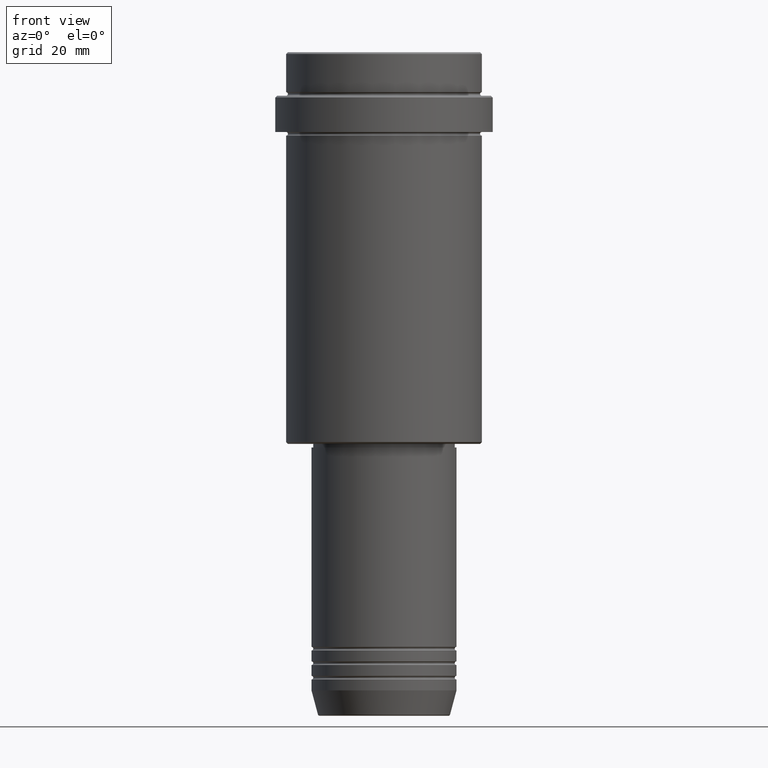
[diagram: clean part render]
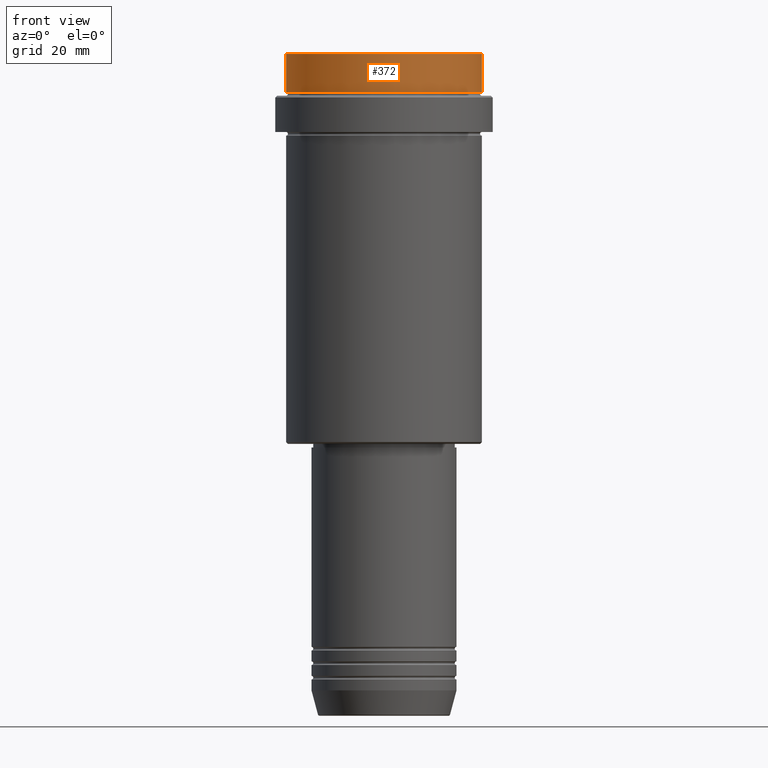
[diagram: same view with one face highlighted and labeled with its STEP entity id]
A machine part, front view. The second image highlights one B-rep face of the part: STEP entity #372.
In plain terms, the highlighted cylindrical surface (partial cylindrical patch) has radius 27 mm, axis along (-0, -0, 1).
Its self-contained STEP definition (entity closure, byte-faithful):
#36 = EDGE_LOOP ( 'NONE', ( #1009, #1146, #731, #609 ) ) ;
#63 = VERTEX_POINT ( 'NONE', #350 ) ;
#69 = CARTESIAN_POINT ( 'NONE',  ( 0.000000000000000000, 0.000000000000000000, 0.000000000000000000 ) ) ;
#103 = AXIS2_PLACEMENT_3D ( 'NONE', #1384, #840, #192 ) ;
#114 = DIRECTION ( 'NONE',  ( -0.000000000000000000, -0.000000000000000000, 1.000000000000000000 ) ) ;
#192 = DIRECTION ( 'NONE',  ( 1.000000000000000000, 0.000000000000000000, 0.000000000000000000 ) ) ;
#214 = LINE ( 'NONE', #772, #634 ) ;
#222 = LINE ( 'NONE', #756, #1360 ) ;
#292 = CYLINDRICAL_SURFACE ( 'NONE', #1220, 26.99999999999999645 ) ;
#301 = EDGE_CURVE ( 'NONE', #375, #859, #698, .T. ) ;
#305 = CARTESIAN_POINT ( 'NONE',  ( 26.99999999999999645, 0.000000000000000000, -11.00000000000000178 ) ) ;
#320 = EDGE_CURVE ( 'NONE', #572, #63, #379, .T. ) ;
#350 = CARTESIAN_POINT ( 'NONE',  ( -26.99999999999999645, 3.306546357697853339E-15, -0.4999999999999761302 ) ) ;
#372 = ADVANCED_FACE ( 'NONE', ( #619 ), #292, .T. ) ;
#375 = VERTEX_POINT ( 'NONE', #944 ) ;
#379 = CIRCLE ( 'NONE', #673, 26.99999999999999645 ) ;
#402 = CARTESIAN_POINT ( 'NONE',  ( 0.000000000000000000, 0.000000000000000000, -0.4999999999999761302 ) ) ;
#504 = DIRECTION ( 'NONE',  ( 1.000000000000000000, 0.000000000000000000, 0.000000000000000000 ) ) ;
#572 = VERTEX_POINT ( 'NONE', #582 ) ;
#582 = CARTESIAN_POINT ( 'NONE',  ( 26.99999999999999645, 0.000000000000000000, -0.4999999999999761302 ) ) ;
#609 = ORIENTED_EDGE ( 'NONE', *, *, #320, .T. ) ;
#619 = FACE_OUTER_BOUND ( 'NONE', #36, .T. ) ;
#626 = DIRECTION ( 'NONE',  ( 1.000000000000000000, 0.000000000000000000, 0.000000000000000000 ) ) ;
#634 = VECTOR ( 'NONE', #684, 1000.000000000000000 ) ;
#673 = AXIS2_PLACEMENT_3D ( 'NONE', #402, #1054, #626 ) ;
#684 = DIRECTION ( 'NONE',  ( -0.000000000000000000, -0.000000000000000000, 1.000000000000000000 ) ) ;
#698 = CIRCLE ( 'NONE', #103, 26.99999999999999645 ) ;
#731 = ORIENTED_EDGE ( 'NONE', *, *, #946, .T. ) ;
#756 = CARTESIAN_POINT ( 'NONE',  ( 26.99999999999999645, 0.000000000000000000, 0.000000000000000000 ) ) ;
#772 = CARTESIAN_POINT ( 'NONE',  ( -26.99999999999999645, 3.306546357697853339E-15, 0.000000000000000000 ) ) ;
#840 = DIRECTION ( 'NONE',  ( -0.000000000000000000, -0.000000000000000000, 1.000000000000000000 ) ) ;
#859 = VERTEX_POINT ( 'NONE', #305 ) ;
#944 = CARTESIAN_POINT ( 'NONE',  ( -26.99999999999999645, 3.306546357697853339E-15, -11.00000000000000178 ) ) ;
#946 = EDGE_CURVE ( 'NONE', #859, #572, #222, .T. ) ;
#1009 = ORIENTED_EDGE ( 'NONE', *, *, #1310, .F. ) ;
#1054 = DIRECTION ( 'NONE',  ( 0.000000000000000000, 0.000000000000000000, -1.000000000000000000 ) ) ;
#1057 = DIRECTION ( 'NONE',  ( -0.000000000000000000, -0.000000000000000000, 1.000000000000000000 ) ) ;
#1146 = ORIENTED_EDGE ( 'NONE', *, *, #301, .T. ) ;
#1220 = AXIS2_PLACEMENT_3D ( 'NONE', #69, #1057, #504 ) ;
#1310 = EDGE_CURVE ( 'NONE', #375, #63, #214, .T. ) ;
#1360 = VECTOR ( 'NONE', #114, 1000.000000000000000 ) ;
#1384 = CARTESIAN_POINT ( 'NONE',  ( 0.000000000000000000, 0.000000000000000000, -11.00000000000000178 ) ) ;